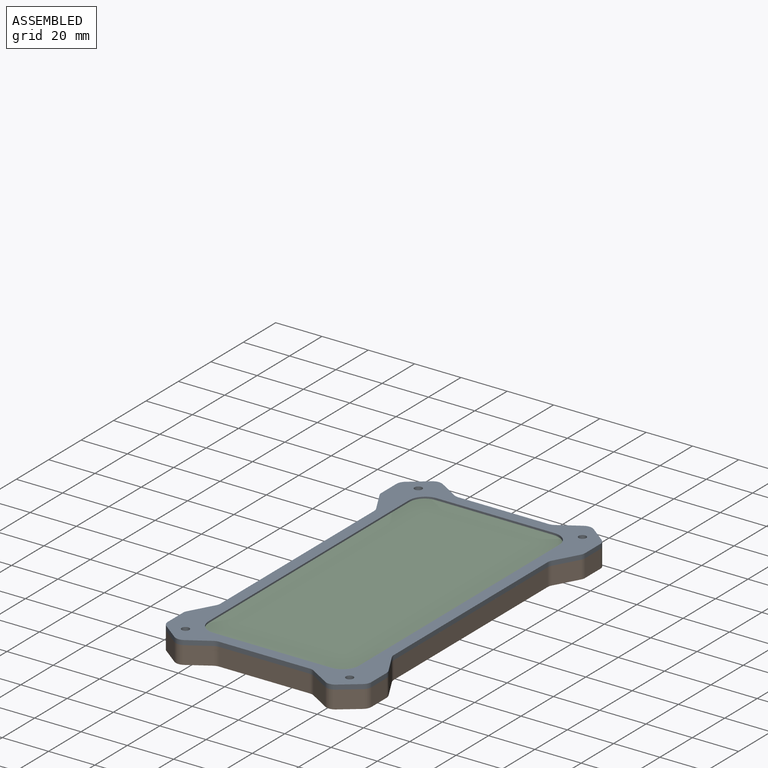
[diagram: assembled view]
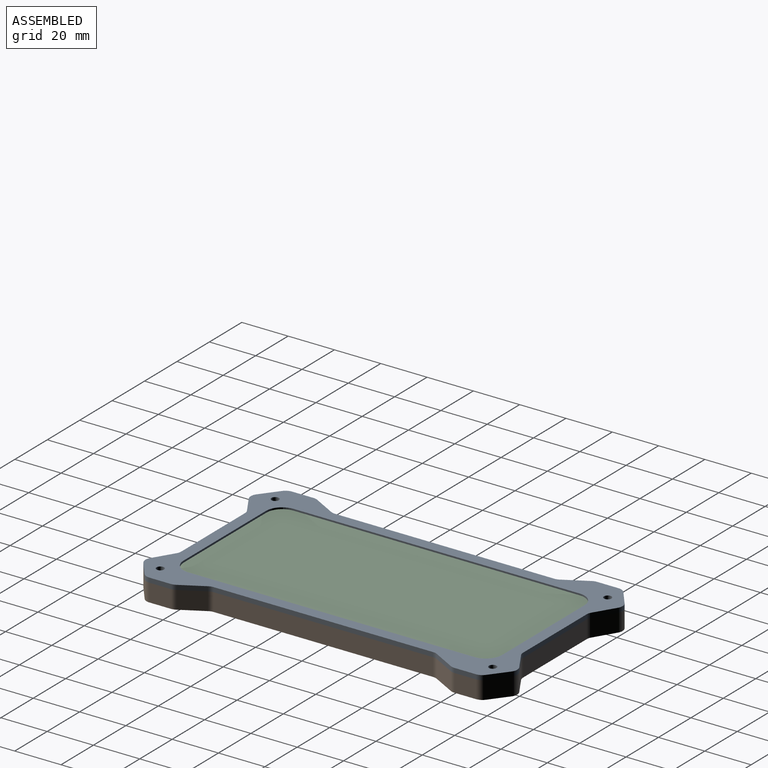
[diagram: assembled view, second angle]
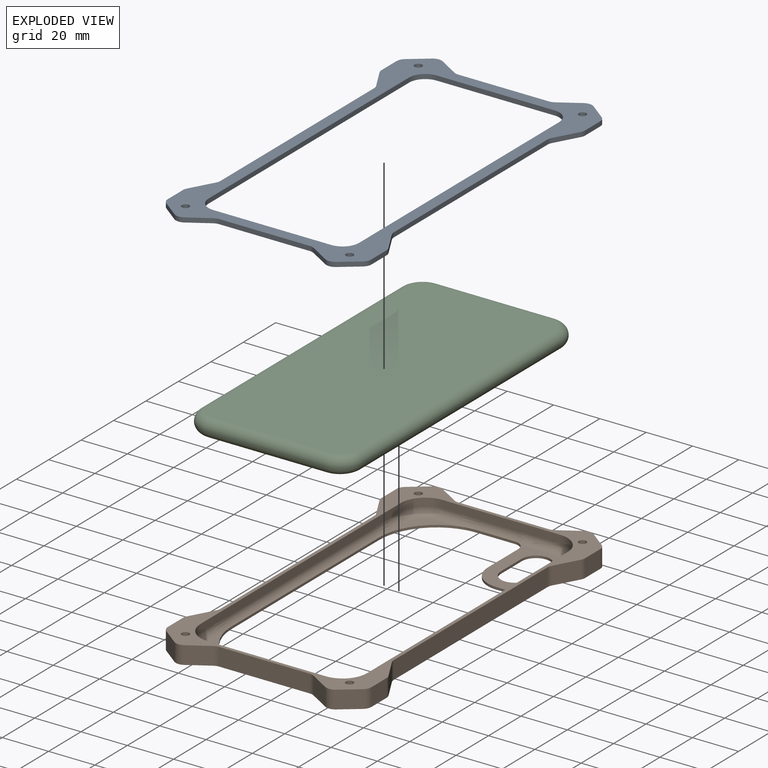
[diagram: exploded view]
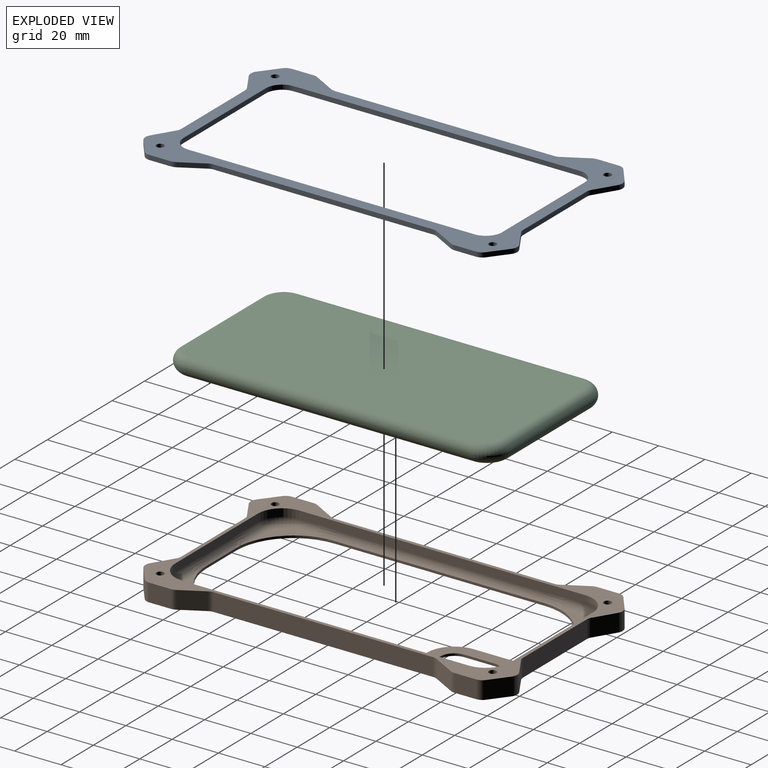
[diagram: exploded view, second angle]
ASSEMBLY  parts=3 mates=2
PART A: 54 faces, bbox 87.9x160.6x2 mm
  f0: cylinder r=7mm len=7mm, axis (0,0,-1), area 22mm2, adj f1,f51,f52,f53
  f1: plane 123.6x2mm, normal (-1,0,0), area 247.2mm2, adj f0,f2,f52,f53
  f2: cylinder r=7mm len=7mm, axis (0,0,-1), area 22mm2, adj f1,f3,f52,f53
  f3: plane 50.9x2mm, normal (0,1,0), area 101.8mm2, adj f2,f4,f52,f53
  f4: cylinder r=7mm len=7mm, axis (0,0,-1), area 22mm2, adj f3,f5,f52,f53
  f5: plane 123.6x2mm, normal (1,0,0), area 247.2mm2, adj f4,f6,f52,f53
  f6: cylinder r=7mm len=7mm, axis (0,0,-1), area 22mm2, adj f5,f51,f52,f53
  f7: plane 94.8x2mm, normal (-1,0,0), area 189.6mm2, adj f8,f46,f52,f53
  f8: cylinder r=4mm len=2mm, axis (0,0,-1), area 4mm2, adj f7,f9,f52,f53
  f9: plane 9.97x5.52mm, normal (-0.87,0.48,0), area 22.8mm2, adj f8,f10,f52,f53
  f10: cylinder r=4mm len=2mm, axis (0,0,-1), area 4mm2, adj f9,f11,f52,f53
  f11: plane 9.26x2mm, normal (-1,0,0), area 18.5mm2, adj f10,f12,f52,f53
  f12: cylinder r=4mm len=3.17mm, axis (0,0,-1), area 7.3mm2, adj f11,f13,f52,f53
  f13: plane 7.49x5.77mm, normal (-0.61,-0.79,0), area 18.9mm2, adj f12,f14,f52,f53
  f14: cylinder r=4mm len=4.52mm, axis (0,0,-1), area 9.6mm2, adj f13,f15,f52,f53
  f15: plane 8.71x5.31mm, normal (0.52,-0.85,0), area 20.4mm2, adj f14,f16,f52,f53
  f16: cylinder r=4mm len=2.08mm, axis (0,0,-1), area 4.4mm2, adj f15,f17,f52,f53
  f17: plane 39.21x2mm, normal (0,-1,0), area 78.4mm2, adj f16,f18,f52,f53
  f18: cylinder r=4mm len=2.08mm, axis (0,0,-1), area 4.4mm2, adj f17,f19,f52,f53
  f19: plane 8.71x5.31mm, normal (-0.52,-0.85,0), area 20.4mm2, adj f18,f20,f52,f53
  f20: cylinder r=4mm len=4.52mm, axis (0,0,-1), area 9.6mm2, adj f19,f21,f52,f53
  f21: plane 7.49x5.77mm, normal (0.61,-0.79,0), area 18.9mm2, adj f20,f22,f52,f53
  f22: cylinder r=4mm len=3.17mm, axis (0,0,-1), area 7.3mm2, adj f21,f23,f52,f53
  f23: plane 9.26x2mm, normal (1,0,0), area 18.5mm2, adj f22,f24,f52,f53
  f24: cylinder r=4mm len=2mm, axis (0,0,-1), area 4mm2, adj f23,f25,f52,f53
  f25: plane 9.97x5.52mm, normal (0.87,0.48,0), area 22.8mm2, adj f24,f26,f52,f53
  f26: cylinder r=4mm len=2mm, axis (0,0,-1), area 4mm2, adj f25,f27,f52,f53
  f27: plane 94.8x2mm, normal (1,0,0), area 189.6mm2, adj f26,f28,f52,f53
  f28: cylinder r=4mm len=2mm, axis (0,0,-1), area 4mm2, adj f27,f29,f52,f53
  f29: plane 9.97x5.52mm, normal (0.87,-0.48,0), area 22.8mm2, adj f28,f30,f52,f53
  f30: cylinder r=4mm len=2mm, axis (0,0,-1), area 4mm2, adj f29,f31,f52,f53
  f31: plane 9.26x2mm, normal (1,0,0), area 18.5mm2, adj f30,f32,f52,f53
  f32: cylinder r=4mm len=3.17mm, axis (0,0,-1), area 7.3mm2, adj f31,f33,f52,f53
  f33: plane 7.49x5.77mm, normal (0.61,0.79,0), area 18.9mm2, adj f32,f34,f52,f53
  f34: cylinder r=4mm len=4.52mm, axis (0,0,-1), area 9.6mm2, adj f33,f35,f52,f53
  f35: plane 8.71x5.31mm, normal (-0.52,0.85,0), area 20.4mm2, adj f34,f36,f52,f53
  f36: cylinder r=4mm len=2.08mm, axis (0,0,-1), area 4.4mm2, adj f35,f37,f52,f53
  f37: plane 39.21x2mm, normal (0,1,0), area 78.4mm2, adj f36,f38,f52,f53
  f38: cylinder r=4mm len=2.08mm, axis (0,0,-1), area 4.4mm2, adj f37,f39,f52,f53
  f39: plane 8.71x5.31mm, normal (0.52,0.85,0), area 20.4mm2, adj f38,f40,f52,f53
  f40: cylinder r=4mm len=4.52mm, axis (0,0,-1), area 9.6mm2, adj f39,f41,f52,f53
  f41: plane 7.49x5.77mm, normal (-0.61,0.79,0), area 18.9mm2, adj f40,f42,f52,f53
  f42: cylinder r=4mm len=3.17mm, axis (0,0,-1), area 7.3mm2, adj f41,f43,f52,f53
  f43: plane 9.26x2mm, normal (-1,0,0), area 18.5mm2, adj f42,f44,f52,f53
  f44: cylinder r=4mm len=2mm, axis (0,0,-1), area 4mm2, adj f43,f45,f52,f53
  f45: plane 9.97x5.52mm, normal (-0.87,-0.48,0), area 22.8mm2, adj f44,f46,f52,f53
  f46: cylinder r=4mm len=2mm, axis (0,0,-1), area 4mm2, adj f7,f45,f52,f53
  f47: cylinder r=1.62mm len=3.25mm, axis (0,0,-1), area 20.4mm2, adj f52,f53
  f48: cylinder r=1.62mm len=3.25mm, axis (0,0,-1), area 20.4mm2, adj f52,f53
  f49: cylinder r=1.62mm len=3.25mm, axis (0,0,-1), area 20.4mm2, adj f52,f53
  f50: cylinder r=1.62mm len=3.25mm, axis (0,0,-1), area 20.4mm2, adj f52,f53
  f51: plane 50.9x2mm, normal (0,-1,0), area 101.8mm2, adj f0,f6,f52,f53
  f52: plane 160.56x87.94mm, normal (0,0,1), area 2945.4mm2, adj f0,f1,f2,f3,f4,f5,f6,f7
  f53: plane 160.56x87.94mm, normal (0,0,-1), area 2945.4mm2, adj f0,f1,f2,f3,f4,f5,f6,f7
PART B: 98 faces, bbox 87.9x160.6x7.7 mm
  f0: plane 15.66x15.66mm, normal (0,0,1), area 72.7mm2, adj f73,f93,f95,f97
  f1: plane 35.17x22.1mm, normal (0,0,1), area 386.1mm2, adj f57,f58,f59,f60,f61,f62,f63,f64
  f2: plane 15.66x15.66mm, normal (0,0,1), area 72.7mm2, adj f71,f74,f76,f78
  f3: plane 76.03x1mm, normal (-1,0,0), area 76mm2, adj f56,f58,f73,f94
  f4: plane 90.81x1mm, normal (1,0,0), area 90.8mm2, adj f56,f71,f72,f77
  f5: plane 18.11x1mm, normal (0,1,0), area 18.1mm2, adj f56,f72,f73,f89
  f6: plane 16.4x1mm, normal (0,-1,0), area 16.4mm2, adj f56,f57,f71,f82
  f7: cylinder r=10.5mm len=10.5mm, axis (0,0,-1), area 56.1mm2, adj f8,f54,f55,f88
  f8: plane 123.6x3.67mm, normal (-1,0,0), area 442.1mm2, adj f7,f9,f55,f90,f92,f94,f96,f97
  f9: cylinder r=10.5mm len=10.5mm, axis (0,0,-1), area 56.1mm2, adj f8,f10,f55,f95
  f10: plane 50.9x3.67mm, normal (0,1,0), area 180.1mm2, adj f9,f11,f55,f85,f87,f89,f91,f93
  f11: cylinder r=10.5mm len=10.5mm, axis (0,0,-1), area 56.1mm2, adj f10,f12,f55,f83
  f12: plane 123.6x3.67mm, normal (1,0,0), area 446.7mm2, adj f11,f13,f55,f74,f75,f77,f79,f81
  f13: cylinder r=10.5mm len=10.5mm, axis (0,0,-1), area 56.1mm2, adj f12,f54,f55,f76
  f14: plane 94.8x7.7mm, normal (-1,0,0), area 730mm2, adj f15,f53,f55,f56
  f15: cylinder r=4mm len=7.7mm, axis (0,0,-1), area 15.6mm2, adj f14,f16,f55,f56
  f16: plane 9.97x7.7mm, normal (-0.87,0.48,0), area 87.7mm2, adj f15,f17,f55,f56
  f17: cylinder r=4mm len=7.7mm, axis (0,0,-1), area 15.6mm2, adj f16,f18,f55,f56
  f18: plane 9.26x7.7mm, normal (-1,0,0), area 71.3mm2, adj f17,f19,f55,f56
  f19: cylinder r=4mm len=7.7mm, axis (0,0,-1), area 28.2mm2, adj f18,f20,f55,f56
  f20: plane 7.7x7.49mm, normal (-0.61,-0.79,0), area 72.8mm2, adj f19,f21,f55,f56
  f21: cylinder r=4mm len=7.7mm, axis (0,0,-1), area 37.1mm2, adj f20,f22,f55,f56
  f22: plane 8.71x7.7mm, normal (0.52,-0.85,0), area 78.6mm2, adj f21,f23,f55,f56
  f23: cylinder r=4mm len=7.7mm, axis (0,0,-1), area 16.9mm2, adj f22,f24,f55,f56
  f24: plane 39.21x7.7mm, normal (0,-1,0), area 301.9mm2, adj f23,f25,f55,f56
  f25: cylinder r=4mm len=7.7mm, axis (0,0,-1), area 16.9mm2, adj f24,f26,f55,f56
  f26: plane 8.71x7.7mm, normal (-0.52,-0.85,0), area 78.6mm2, adj f25,f27,f55,f56
  f27: cylinder r=4mm len=7.7mm, axis (0,0,-1), area 37.1mm2, adj f26,f28,f55,f56
  f28: plane 7.7x7.49mm, normal (0.61,-0.79,0), area 72.8mm2, adj f27,f29,f55,f56
  f29: cylinder r=4mm len=7.7mm, axis (0,0,-1), area 28.2mm2, adj f28,f30,f55,f56
  f30: plane 9.26x7.7mm, normal (1,0,0), area 71.3mm2, adj f29,f31,f55,f56
  f31: cylinder r=4mm len=7.7mm, axis (0,0,-1), area 15.6mm2, adj f30,f32,f55,f56
  f32: plane 9.97x7.7mm, normal (0.87,0.48,0), area 87.7mm2, adj f31,f33,f55,f56
  f33: cylinder r=4mm len=7.7mm, axis (0,0,-1), area 15.6mm2, adj f32,f34,f55,f56
  f34: plane 94.8x7.7mm, normal (1,0,0), area 730mm2, adj f33,f35,f55,f56
  f35: cylinder r=4mm len=7.7mm, axis (0,0,-1), area 15.6mm2, adj f34,f36,f55,f56
  f36: plane 9.97x7.7mm, normal (0.87,-0.48,0), area 87.7mm2, adj f35,f37,f55,f56
  f37: cylinder r=4mm len=7.7mm, axis (0,0,-1), area 15.6mm2, adj f36,f38,f55,f56
  f38: plane 9.26x7.7mm, normal (1,0,0), area 71.3mm2, adj f37,f39,f55,f56
  f39: cylinder r=4mm len=7.7mm, axis (0,0,-1), area 28.2mm2, adj f38,f40,f55,f56
  f40: plane 7.7x7.49mm, normal (0.61,0.79,0), area 72.8mm2, adj f39,f41,f55,f56
  f41: cylinder r=4mm len=7.7mm, axis (0,0,-1), area 37.1mm2, adj f40,f42,f55,f56
  f42: plane 8.71x7.7mm, normal (-0.52,0.85,0), area 78.6mm2, adj f41,f43,f55,f56
  f43: cylinder r=4mm len=7.7mm, axis (0,0,-1), area 16.9mm2, adj f42,f44,f55,f56
  f44: plane 39.21x7.7mm, normal (0,1,0), area 301.9mm2, adj f43,f45,f55,f56
  f45: cylinder r=4mm len=7.7mm, axis (0,0,-1), area 16.9mm2, adj f44,f46,f55,f56
  f46: plane 8.71x7.7mm, normal (0.52,0.85,0), area 78.6mm2, adj f45,f47,f55,f56
  f47: cylinder r=4mm len=7.7mm, axis (0,0,-1), area 37.1mm2, adj f46,f48,f55,f56
  f48: plane 7.7x7.49mm, normal (-0.61,0.79,0), area 72.8mm2, adj f47,f49,f55,f56
  f49: cylinder r=4mm len=7.7mm, axis (0,0,-1), area 28.2mm2, adj f48,f50,f55,f56
  f50: plane 9.26x7.7mm, normal (-1,0,0), area 71.3mm2, adj f49,f51,f55,f56
  f51: cylinder r=4mm len=7.7mm, axis (0,0,-1), area 15.6mm2, adj f50,f52,f55,f56
  f52: plane 9.97x7.7mm, normal (-0.87,-0.48,0), area 87.7mm2, adj f51,f53,f55,f56
  f53: cylinder r=4mm len=7.7mm, axis (0,0,-1), area 15.6mm2, adj f14,f52,f55,f56
  f54: plane 50.9x3.67mm, normal (0,-1,0), area 179mm2, adj f7,f13,f55,f78,f80,f82,f84,f86
  f55: plane 160.56x87.94mm, normal (0,0,1), area 1531.5mm2, adj f7,f8,f9,f10,f11,f12,f13,f14
  f56: plane 160.56x87.94mm, normal (0,0,-1), area 3161.9mm2, adj f3,f4,f5,f6,f14,f15,f16,f17
  f57: cylinder r=4.61mm len=4.61mm, axis (0,0,-1), area 7.2mm2, adj f1,f6,f56,f65,f84
  f58: cylinder r=4.61mm len=4.61mm, axis (0,0,-1), area 7.2mm2, adj f1,f3,f56,f59,f92
  f59: plane 5.64x1mm, normal (0,-1,0), area 5.6mm2, adj f1,f56,f58,f60
  f60: cylinder r=11.75mm len=11.75mm, axis (0,0,-1), area 18.5mm2, adj f1,f56,f59,f65
  f61: plane 12.91x1mm, normal (-1,0,0), area 12.9mm2, adj f1,f56,f62,f64
  f62: cylinder r=6.11mm len=12.22mm, axis (0,0,-1), area 19.2mm2, adj f1,f56,f61,f63
  f63: plane 12.91x1mm, normal (1,0,0), area 12.9mm2, adj f1,f56,f62,f64
  f64: cylinder r=6.11mm len=12.22mm, axis (0,0,-1), area 19.2mm2, adj f1,f56,f61,f63
  f65: plane 18.71x1mm, normal (-1,0,0), area 18.7mm2, adj f1,f56,f57,f60
  f66: plane 15.66x15.66mm, normal (0,0,1), area 72.7mm2, adj f72,f81,f83,f85
  f67: cylinder r=1.62mm len=7.7mm, axis (0,0,1), area 78.6mm2, adj f55,f56
  f68: cylinder r=1.62mm len=7.7mm, axis (0,0,1), area 78.6mm2, adj f55,f56
  f69: cylinder r=1.62mm len=7.7mm, axis (0,0,1), area 78.6mm2, adj f55,f56
  f70: cylinder r=1.62mm len=7.7mm, axis (0,0,1), area 78.6mm2, adj f55,f56
  f71: cylinder r=24.89mm len=24.9mm, axis (0,0,1), area 39.1mm2, adj f2,f4,f6,f56,f75,f80
  f72: cylinder r=24.89mm len=24.9mm, axis (0,0,1), area 39.1mm2, adj f4,f5,f56,f66,f79,f87
  f73: cylinder r=24.89mm len=24.9mm, axis (0,0,1), area 39.1mm2, adj f0,f3,f5,f56,f91,f96
  f74: cylinder r=3.3mm len=8.46mm, axis (0,-1,0), area 43.8mm2, adj f2,f12,f75,f76
  f75: bspline ~10.47x3.62mm, area 34.1mm2, adj f12,f71,f74,f77
  f76: torus R=7.2mm, axis (0,0,-1), area 75.7mm2, adj f2,f13,f74,f78
  f77: cylinder r=3.3mm len=90.81mm, axis (0,1,0), area 349.4mm2, adj f4,f12,f75,f79
  f78: cylinder r=3.3mm len=8.46mm, axis (-1,0,0), area 43.8mm2, adj f2,f54,f76,f80
  f79: bspline ~10.42x3.85mm, area 34.1mm2, adj f12,f72,f77,f81
  f80: bspline ~10.42x3.85mm, area 34.1mm2, adj f54,f71,f78,f82
  f81: cylinder r=3.3mm len=8.46mm, axis (0,-1,0), area 43.8mm2, adj f12,f66,f79,f83
  f82: cylinder r=3.3mm len=16.4mm, axis (1,0,0), area 63.1mm2, adj f6,f54,f80,f84
  f83: torus R=7.2mm, axis (0,0,-1), area 75.7mm2, adj f11,f66,f81,f85
  f84: bspline ~4.1x3.52mm, area 13.8mm2, adj f54,f57,f82,f86
  f85: cylinder r=3.3mm len=8.46mm, axis (1,0,0), area 43.8mm2, adj f10,f66,f83,f87
  f86: cylinder r=3.3mm len=14.9mm, axis (-1,0,0), area 77.2mm2, adj f1,f54,f84,f88
  f87: bspline ~10.47x3.62mm, area 34.1mm2, adj f10,f72,f85,f89
  f88: torus R=7.2mm, axis (0,0,-1), area 75.7mm2, adj f1,f7,f86,f90
  f89: cylinder r=3.3mm len=18.11mm, axis (1,0,0), area 69.7mm2, adj f5,f10,f87,f91
  f90: cylinder r=3.3mm len=27.97mm, axis (0,1,0), area 145mm2, adj f1,f8,f88,f92
  f91: bspline ~11.14x4.12mm, area 34.1mm2, adj f10,f73,f89,f93
  f92: bspline ~4.17x3.51mm, area 13.8mm2, adj f8,f58,f90,f94
  f93: cylinder r=3.3mm len=8.46mm, axis (1,0,0), area 43.8mm2, adj f0,f10,f91,f95
  f94: cylinder r=3.3mm len=76.03mm, axis (0,1,0), area 292.5mm2, adj f3,f8,f92,f96
  f95: torus R=7.2mm, axis (0,0,-1), area 75.7mm2, adj f0,f9,f93,f97
  f96: bspline ~10.47x3.62mm, area 34.1mm2, adj f8,f73,f94,f97
  f97: cylinder r=3.3mm len=8.46mm, axis (0,1,0), area 43.8mm2, adj f0,f8,f95,f96
PART C: 15 faces, bbox 72.5x145.2x9 mm
  f0: plane 135.9x63.2mm, normal (0,0,-1), area 8311.1mm2, adj f2,f3,f4,f5,f6,f7,f8,f9
  f1: plane 135.9x63.2mm, normal (0,0,1), area 8556.4mm2, adj f2,f3,f4,f5,f6,f7,f8,f9
  f2: cylinder r=3.85mm len=123.6mm, axis (0,1,0), area 1495mm2, adj f0,f1,f3,f4
  f3: torus R=6.15mm, axis (0,0,1), area 163.4mm2, adj f0,f1,f2,f5
  f4: torus R=6.15mm, axis (0,0,1), area 163.4mm2, adj f0,f1,f2,f6
  f5: cylinder r=3.85mm len=50.9mm, axis (-1,0,0), area 615.6mm2, adj f0,f1,f3,f7
  f6: cylinder r=3.85mm len=50.9mm, axis (1,0,0), area 615.6mm2, adj f0,f1,f4,f8
  f7: torus R=6.15mm, axis (0,0,1), area 163.4mm2, adj f0,f1,f5,f9
  f8: torus R=6.15mm, axis (0,0,1), area 163.4mm2, adj f0,f1,f6,f9
  f9: cylinder r=3.85mm len=123.6mm, axis (0,-1,0), area 1495mm2, adj f0,f1,f7,f8
  f10: cylinder r=5.65mm len=11.3mm, axis (0,0,1), area 23.1mm2, adj f0,f11,f13,f14
  f11: plane 12.83x1.3mm, normal (1,0,0), area 16.7mm2, adj f0,f10,f12,f14
  f12: cylinder r=5.65mm len=11.3mm, axis (0,0,1), area 23.1mm2, adj f0,f11,f13,f14
  f13: plane 12.83x1.3mm, normal (-1,0,0), area 16.7mm2, adj f0,f10,f12,f14
  f14: plane 24.13x11.3mm, normal (0,0,-1), area 245.3mm2, adj f10,f11,f12,f13
PLACE A t=(-3.77,-30.15,31.19)mm
PLACE B t=(-3.77,-30.15,31.19)mm fixed
PLACE C t=(-4.87,-30.24,32.49)mm
MATE fastened B.f69 <-> A.f50  axis (0,0,1) through (-3.77,113.45,38.89)mm
MATE fastened C.f10 <-> B.f62  axis (0,0,-1) through (55.38,101.54,31.19)mm
